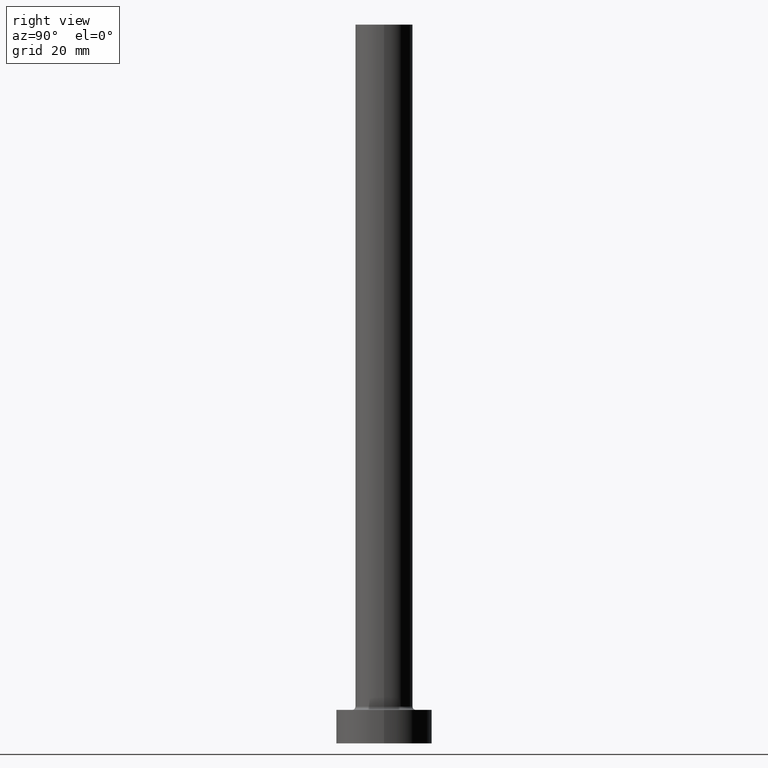
[diagram: clean part render]
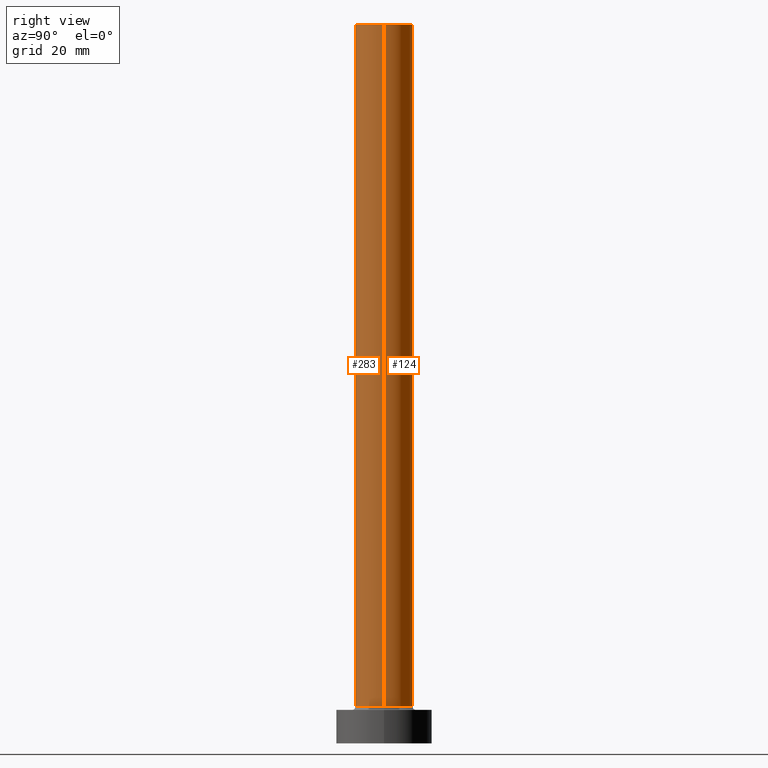
[diagram: same view with one multi-face feature highlighted, each face labeled with its STEP entity id]
A machine part, right view. The highlighted faces form ONE feature: a constant-radius fillet chain: 2 tangent blend faces with common blend radius 6 mm. The faces share edges in the B-rep.
Their STEP definitions:
[1] entity #283 (Cylinder):
#2 = CARTESIAN_POINT ( 'NONE',  ( 0.000000000000000000, 0.000000000000000000, 150.0000000000000000 ) ) ;
#3 = VERTEX_POINT ( 'NONE', #352 ) ;
#14 = AXIS2_PLACEMENT_3D ( 'NONE', #163, #100, #298 ) ;
#19 = VERTEX_POINT ( 'NONE', #204 ) ;
#38 = ORIENTED_EDGE ( 'NONE', *, *, #439, .F. ) ;
#53 = ORIENTED_EDGE ( 'NONE', *, *, #244, .F. ) ;
#57 = LINE ( 'NONE', #193, #309 ) ;
#92 = ORIENTED_EDGE ( 'NONE', *, *, #145, .T. ) ;
#100 = DIRECTION ( 'NONE',  ( 0.000000000000000000, 0.000000000000000000, 1.000000000000000000 ) ) ;
#108 = DIRECTION ( 'NONE',  ( 0.000000000000000000, 0.000000000000000000, 1.000000000000000000 ) ) ;
#130 = DIRECTION ( 'NONE',  ( -1.000000000000000000, 0.000000000000000000, 0.000000000000000000 ) ) ;
#133 = AXIS2_PLACEMENT_3D ( 'NONE', #2, #108, #314 ) ;
#145 = EDGE_CURVE ( 'NONE', #273, #19, #416, .T. ) ;
#163 = CARTESIAN_POINT ( 'NONE',  ( 0.000000000000000000, 0.000000000000000000, 7.700000000000012612 ) ) ;
#186 = DIRECTION ( 'NONE',  ( -0.000000000000000000, -0.000000000000000000, -1.000000000000000000 ) ) ;
#189 = CARTESIAN_POINT ( 'NONE',  ( 0.000000000000000000, 0.000000000000000000, 150.0000000000000000 ) ) ;
#191 = LINE ( 'NONE', #412, #202 ) ;
#193 = CARTESIAN_POINT ( 'NONE',  ( -6.000000000000000888, 0.000000000000000000, 150.0000000000000000 ) ) ;
#202 = VECTOR ( 'NONE', #335, 1000.000000000000000 ) ;
#204 = CARTESIAN_POINT ( 'NONE',  ( 6.000000000000000888, 7.347880794884120722E-16, 7.700000000000012612 ) ) ;
#219 = AXIS2_PLACEMENT_3D ( 'NONE', #189, #453, #130 ) ;
#224 = EDGE_CURVE ( 'NONE', #315, #273, #57, .T. ) ;
#226 = FACE_OUTER_BOUND ( 'NONE', #398, .T. ) ;
#244 = EDGE_CURVE ( 'NONE', #3, #19, #191, .T. ) ;
#248 = CIRCLE ( 'NONE', #133, 6.000000000000000888 ) ;
#266 = CARTESIAN_POINT ( 'NONE',  ( -6.000000000000000888, 0.000000000000000000, 150.0000000000000000 ) ) ;
#273 = VERTEX_POINT ( 'NONE', #406 ) ;
#276 = ORIENTED_EDGE ( 'NONE', *, *, #224, .T. ) ;
#283 = ADVANCED_FACE ( 'NONE', ( #226 ), #369, .T. ) ;
#298 = DIRECTION ( 'NONE',  ( 1.000000000000000000, 0.000000000000000000, 0.000000000000000000 ) ) ;
#309 = VECTOR ( 'NONE', #186, 1000.000000000000000 ) ;
#314 = DIRECTION ( 'NONE',  ( 1.000000000000000000, 0.000000000000000000, 0.000000000000000000 ) ) ;
#315 = VERTEX_POINT ( 'NONE', #266 ) ;
#335 = DIRECTION ( 'NONE',  ( -0.000000000000000000, -0.000000000000000000, -1.000000000000000000 ) ) ;
#352 = CARTESIAN_POINT ( 'NONE',  ( 6.000000000000000888, 7.347880794884120722E-16, 150.0000000000000000 ) ) ;
#369 = CYLINDRICAL_SURFACE ( 'NONE', #219, 6.000000000000000888 ) ;
#398 = EDGE_LOOP ( 'NONE', ( #53, #38, #276, #92 ) ) ;
#406 = CARTESIAN_POINT ( 'NONE',  ( -6.000000000000000888, 0.000000000000000000, 7.700000000000012612 ) ) ;
#412 = CARTESIAN_POINT ( 'NONE',  ( 6.000000000000000888, 7.347880794884120722E-16, 150.0000000000000000 ) ) ;
#416 = CIRCLE ( 'NONE', #14, 6.000000000000000888 ) ;
#439 = EDGE_CURVE ( 'NONE', #315, #3, #248, .T. ) ;
#453 = DIRECTION ( 'NONE',  ( -0.000000000000000000, -0.000000000000000000, -1.000000000000000000 ) ) ;
[2] entity #124 (Cylinder):
#3 = VERTEX_POINT ( 'NONE', #352 ) ;
#19 = VERTEX_POINT ( 'NONE', #204 ) ;
#41 = EDGE_LOOP ( 'NONE', ( #342, #46, #203, #433 ) ) ;
#46 = ORIENTED_EDGE ( 'NONE', *, *, #244, .T. ) ;
#57 = LINE ( 'NONE', #193, #309 ) ;
#81 = DIRECTION ( 'NONE',  ( 0.000000000000000000, 0.000000000000000000, 1.000000000000000000 ) ) ;
#93 = AXIS2_PLACEMENT_3D ( 'NONE', #280, #250, #216 ) ;
#110 = CIRCLE ( 'NONE', #363, 6.000000000000000888 ) ;
#124 = ADVANCED_FACE ( 'NONE', ( #223 ), #277, .T. ) ;
#151 = DIRECTION ( 'NONE',  ( 1.000000000000000000, 0.000000000000000000, 0.000000000000000000 ) ) ;
#186 = DIRECTION ( 'NONE',  ( -0.000000000000000000, -0.000000000000000000, -1.000000000000000000 ) ) ;
#191 = LINE ( 'NONE', #412, #202 ) ;
#193 = CARTESIAN_POINT ( 'NONE',  ( -6.000000000000000888, 0.000000000000000000, 150.0000000000000000 ) ) ;
#202 = VECTOR ( 'NONE', #335, 1000.000000000000000 ) ;
#203 = ORIENTED_EDGE ( 'NONE', *, *, #405, .T. ) ;
#204 = CARTESIAN_POINT ( 'NONE',  ( 6.000000000000000888, 7.347880794884120722E-16, 7.700000000000012612 ) ) ;
#216 = DIRECTION ( 'NONE',  ( -1.000000000000000000, 0.000000000000000000, 0.000000000000000000 ) ) ;
#223 = FACE_OUTER_BOUND ( 'NONE', #41, .T. ) ;
#224 = EDGE_CURVE ( 'NONE', #315, #273, #57, .T. ) ;
#237 = CARTESIAN_POINT ( 'NONE',  ( 0.000000000000000000, 0.000000000000000000, 150.0000000000000000 ) ) ;
#244 = EDGE_CURVE ( 'NONE', #3, #19, #191, .T. ) ;
#250 = DIRECTION ( 'NONE',  ( -0.000000000000000000, -0.000000000000000000, -1.000000000000000000 ) ) ;
#258 = DIRECTION ( 'NONE',  ( 1.000000000000000000, 0.000000000000000000, 0.000000000000000000 ) ) ;
#266 = CARTESIAN_POINT ( 'NONE',  ( -6.000000000000000888, 0.000000000000000000, 150.0000000000000000 ) ) ;
#273 = VERTEX_POINT ( 'NONE', #406 ) ;
#277 = CYLINDRICAL_SURFACE ( 'NONE', #93, 6.000000000000000888 ) ;
#280 = CARTESIAN_POINT ( 'NONE',  ( 0.000000000000000000, 0.000000000000000000, 150.0000000000000000 ) ) ;
#293 = DIRECTION ( 'NONE',  ( 0.000000000000000000, 0.000000000000000000, 1.000000000000000000 ) ) ;
#309 = VECTOR ( 'NONE', #186, 1000.000000000000000 ) ;
#315 = VERTEX_POINT ( 'NONE', #266 ) ;
#335 = DIRECTION ( 'NONE',  ( -0.000000000000000000, -0.000000000000000000, -1.000000000000000000 ) ) ;
#342 = ORIENTED_EDGE ( 'NONE', *, *, #399, .F. ) ;
#352 = CARTESIAN_POINT ( 'NONE',  ( 6.000000000000000888, 7.347880794884120722E-16, 150.0000000000000000 ) ) ;
#363 = AXIS2_PLACEMENT_3D ( 'NONE', #372, #293, #151 ) ;
#372 = CARTESIAN_POINT ( 'NONE',  ( 0.000000000000000000, 0.000000000000000000, 7.700000000000012612 ) ) ;
#399 = EDGE_CURVE ( 'NONE', #3, #315, #450, .T. ) ;
#405 = EDGE_CURVE ( 'NONE', #19, #273, #110, .T. ) ;
#406 = CARTESIAN_POINT ( 'NONE',  ( -6.000000000000000888, 0.000000000000000000, 7.700000000000012612 ) ) ;
#412 = CARTESIAN_POINT ( 'NONE',  ( 6.000000000000000888, 7.347880794884120722E-16, 150.0000000000000000 ) ) ;
#433 = ORIENTED_EDGE ( 'NONE', *, *, #224, .F. ) ;
#445 = AXIS2_PLACEMENT_3D ( 'NONE', #237, #81, #258 ) ;
#450 = CIRCLE ( 'NONE', #445, 6.000000000000000888 ) ;